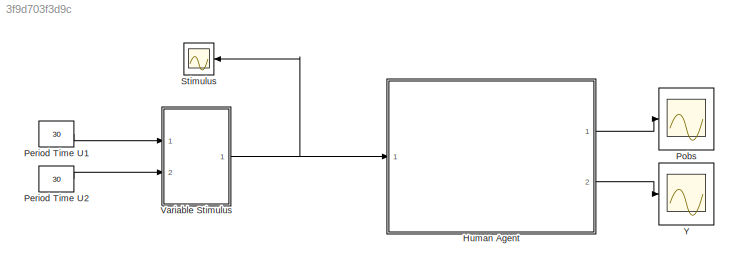
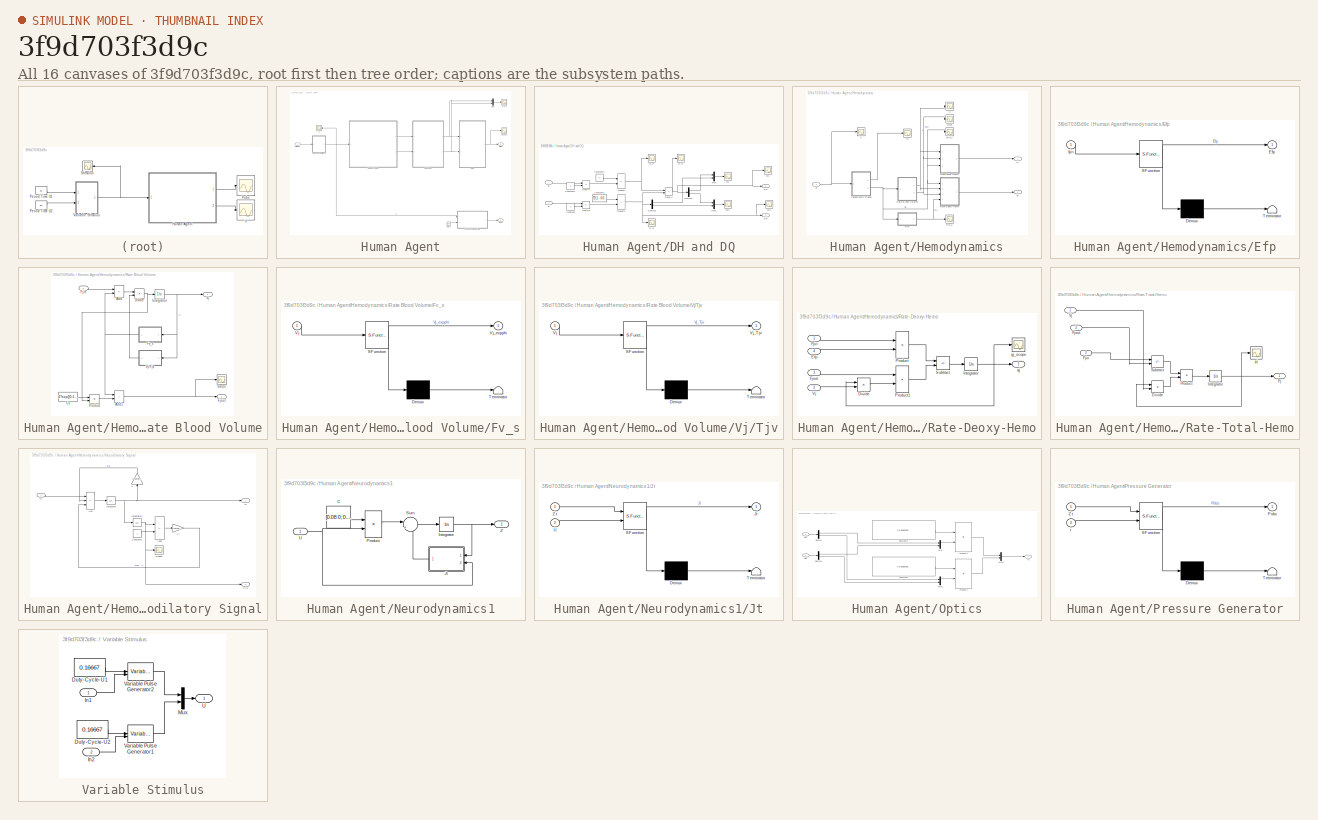
[diagram: thumbnail index - all 16 canvases of the model, root first then tree order]
MODEL slx_3f9d703f3d9c
KIND model
CONFIG AbsTol = auto
CONFIG EnableMultiTasking = off
CONFIG FixedStep = auto
CONFIG MaxStep = auto
CONFIG MinStep = auto
CONFIG RelTol = 1e-3
CONFIG SampleTimeConstraint = Unconstrained
CONFIG SolverName = ode45
CONFIG StartTime = 0.0
CONFIG StopTime = 60
BLOCK [SubSystem] Human Agent
  Ports = [1, 2]
  RequestExecContextInheritance = off
BLOCK [Clock] Human Agent/Clock
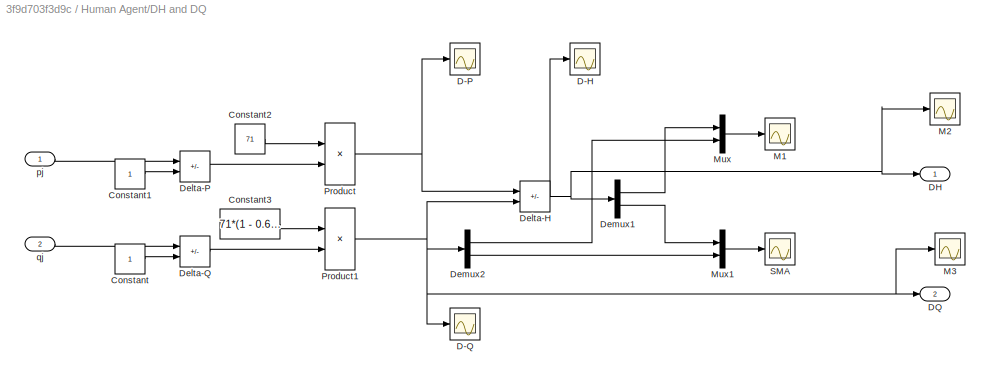
BLOCK [SubSystem] Human Agent/DH and DQ
  Ports = [2, 2]
  RequestExecContextInheritance = off
BLOCK [Constant] Human Agent/DH and DQ/Constant
BLOCK [Constant] Human Agent/DH and DQ/Constant1
BLOCK [Constant] Human Agent/DH and DQ/Constant2
  Value = 71
BLOCK [Constant] Human Agent/DH and DQ/Constant3
  Value = 71*(1 - 0.65)
BLOCK [Scope] Human Agent/DH and DQ/D-H
  Floating = off
  NumInputPorts = 1
  Ports = [1]
  ScopeSpecificationString = Simulink.scopes.TimeScopeBlockCfg('CurrentConfiguration', extmgr.ConfigurationSet(extmgr.Configuration('Core','General UI',true),extmgr.Configuration('Core','Source UI',true),extmgr.Configuration('Sources','WiredSimulink',true,'DataLoggingVariableName','ScopeData7'),extmgr.Configuration('Visuals','Time Domain',true,'SerializedDisplays',{struct('MinYLimReal','-2.91276','MaxYLimReal','17.16126','YLa...<+1449ch>
BLOCK [Scope] Human Agent/DH and DQ/D-P
  Floating = off
  NumInputPorts = 1
  Ports = [1]
  ScopeSpecificationString = Simulink.scopes.TimeScopeBlockCfg('CurrentConfiguration', extmgr.ConfigurationSet(extmgr.Configuration('Core','General UI',true),extmgr.Configuration('Core','Source UI',true),extmgr.Configuration('Sources','WiredSimulink',true,'DataLoggingVariableName','ScopeData5'),extmgr.Configuration('Visuals','Time Domain',true,'SerializedDisplays',{struct('MinYLimReal','-2.54989','MaxYLimReal','15.75385','YLa...<+1449ch>
BLOCK [Scope] Human Agent/DH and DQ/D-Q
  Floating = off
  NumInputPorts = 1
  Ports = [1]
  ScopeSpecificationString = Simulink.scopes.TimeScopeBlockCfg('CurrentConfiguration', extmgr.ConfigurationSet(extmgr.Configuration('Core','General UI',true),extmgr.Configuration('Core','Source UI',true),extmgr.Configuration('Sources','WiredSimulink',true,'DataLoggingVariableName','ScopeData6'),extmgr.Configuration('Visuals','Time Domain',true,'SerializedDisplays',{struct('MinYLimReal','-1.64461','MaxYLimReal','0.38619','YLab...<+1448ch>
BLOCK [Outport] Human Agent/DH and DQ/DH
BLOCK [Outport] Human Agent/DH and DQ/DQ
  Port = 2
BLOCK [Sum] Human Agent/DH and DQ/Delta-H
  IconShape = rectangular
  Inputs = +-
  Ports = [2, 1]
BLOCK [Sum] Human Agent/DH and DQ/Delta-P
  IconShape = rectangular
  Inputs = +-
  Ports = [2, 1]
BLOCK [Sum] Human Agent/DH and DQ/Delta-Q
  IconShape = rectangular
  Inputs = +-
  Ports = [2, 1]
BLOCK [Demux] Human Agent/DH and DQ/Demux1
  Outputs = 2
  Ports = [1, 2]
BLOCK [Demux] Human Agent/DH and DQ/Demux2
  Outputs = 2
  Ports = [1, 2]
BLOCK [Scope] Human Agent/DH and DQ/M1
  Floating = off
  NumInputPorts = 1
  Ports = [1]
  ScopeSpecificationString = Simulink.scopes.TimeScopeBlockCfg('CurrentConfiguration', extmgr.ConfigurationSet(extmgr.Configuration('Core','General UI',true),extmgr.Configuration('Core','Source UI',true),extmgr.Configuration('Sources','WiredSimulink',true,'DataLoggingVariableName','ScopeData8'),extmgr.Configuration('Visuals','Time Domain',true,'SerializedDisplays',{struct('MinYLimReal','-2.53548','MaxYLimReal','8.40407','YLab...<+1757ch>
BLOCK [Scope] Human Agent/DH and DQ/M2
  Floating = off
  NumInputPorts = 1
  Ports = [1]
  ScopeSpecificationString = Simulink.scopes.TimeScopeBlockCfg('CurrentConfiguration', extmgr.ConfigurationSet(extmgr.Configuration('Core','General UI',true),extmgr.Configuration('Core','Source UI',true),extmgr.Configuration('Sources','WiredSimulink',true,'DataLoggingVariableName','ScopeData1'),extmgr.Configuration('Visuals','Time Domain',true,'SerializedDisplays',{struct('MinYLimReal','-2.88306','MaxYLimReal','17.00039','YLa...<+1764ch>
BLOCK [Scope] Human Agent/DH and DQ/M3
  Floating = off
  NumInputPorts = 1
  Ports = [1]
  ScopeSpecificationString = Simulink.scopes.TimeScopeBlockCfg('CurrentConfiguration', extmgr.ConfigurationSet(extmgr.Configuration('Core','General UI',true),extmgr.Configuration('Core','Source UI',true),extmgr.Configuration('Sources','WiredSimulink',true,'DataLoggingVariableName','ScopeData2'),extmgr.Configuration('Visuals','Time Domain',true,'SerializedDisplays',{struct('MinYLimReal','-1.64461','MaxYLimReal','0.38619','YLab...<+1762ch>
BLOCK [Mux] Human Agent/DH and DQ/Mux
  DisplayOption = bar
  Inputs = 2
  Ports = [2, 1]
BLOCK [Mux] Human Agent/DH and DQ/Mux1
  DisplayOption = bar
  Inputs = 2
  Ports = [2, 1]
BLOCK [Product] Human Agent/DH and DQ/Product
  Ports = [2, 1]
BLOCK [Product] Human Agent/DH and DQ/Product1
  Ports = [2, 1]
BLOCK [Scope] Human Agent/DH and DQ/SMA
  Floating = off
  NumInputPorts = 1
  Ports = [1]
  ScopeSpecificationString = Simulink.scopes.TimeScopeBlockCfg('CurrentConfiguration', extmgr.ConfigurationSet(extmgr.Configuration('Core','General UI',true),extmgr.Configuration('Core','Source UI',true),extmgr.Configuration('Sources','WiredSimulink',true,'DataLoggingVariableName','ScopeData9'),extmgr.Configuration('Visuals','Time Domain',true,'SerializedDisplays',{struct('MinYLimReal','-3.30393','MaxYLimReal','17.04715','YLa...<+1761ch>
BLOCK [Inport] Human Agent/DH and DQ/pj
BLOCK [Inport] Human Agent/DH and DQ/qj
  Port = 2
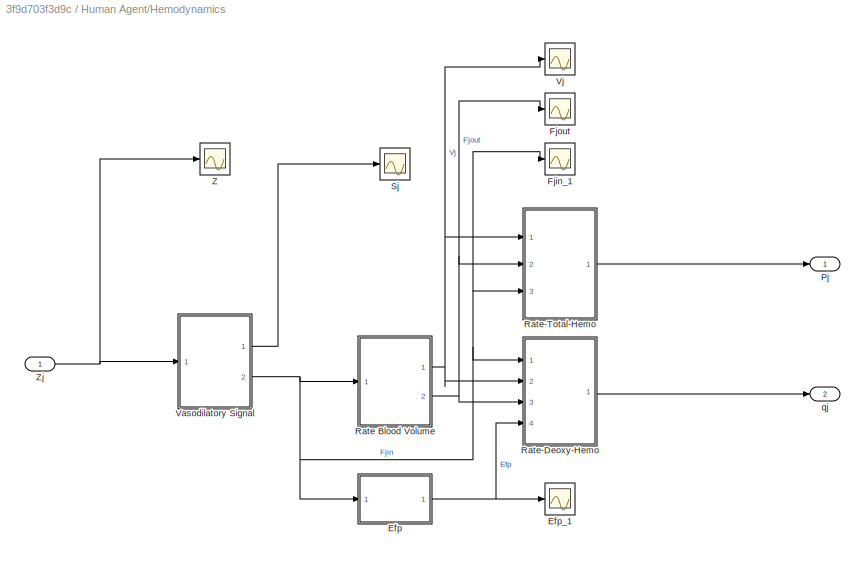
BLOCK [SubSystem] Human Agent/Hemodynamics
  Ports = [1, 2]
  RequestExecContextInheritance = off
BLOCK [SubSystem] Human Agent/Hemodynamics/Efp
  ErrorFcn = Stateflow.Translate.translate
  PermitHierarchicalResolution = ExplicitOnly
  Ports = [1, 1]
  RequestExecContextInheritance = off
  SFBlockType = MATLAB Function
  TreatAsAtomicUnit = on
BLOCK [Demux] Human Agent/Hemodynamics/Efp/ Demux 
  Outputs = 1
  Ports = [1, 1]
BLOCK [S-Function] Human Agent/Hemodynamics/Efp/ SFunction 
  EnableBusSupport = on
  FunctionName = sf_sfun
  PortCounts = [1 2]
  Ports = [1, 2]
  SFcnIsStateOwnerBlock = off
  SFunctionDeploymentMode = off
  Tag = Stateflow S-Function 1
BLOCK [Terminator] Human Agent/Hemodynamics/Efp/ Terminator 
BLOCK [Outport] Human Agent/Hemodynamics/Efp/Efp
BLOCK [Inport] Human Agent/Hemodynamics/Efp/fjin
BLOCK [Scope] Human Agent/Hemodynamics/Efp_1
  Floating = off
  NumInputPorts = 1
  Ports = [1]
  ScopeSpecificationString = Simulink.scopes.TimeScopeBlockCfg('CurrentConfiguration', extmgr.ConfigurationSet(extmgr.Configuration('Core','General UI',true),extmgr.Configuration('Core','Source UI',true),extmgr.Configuration('Sources','WiredSimulink',true,'DataLoggingVariableName','ScopeData7'),extmgr.Configuration('Visuals','Time Domain',true,'SerializedDisplays',{struct('MinYLimReal','0.87922','MaxYLimReal','1.03497','YLabe...<+1400ch>
BLOCK [Scope] Human Agent/Hemodynamics/Fjin_1
  Floating = off
  NumInputPorts = 1
  Ports = [1]
  ScopeSpecificationString = Simulink.scopes.TimeScopeBlockCfg('CurrentConfiguration', extmgr.ConfigurationSet(extmgr.Configuration('Core','General UI',true),extmgr.Configuration('Core','Source UI',true),extmgr.Configuration('Sources','WiredSimulink',true,'DataLoggingVariableName','ScopeData6'),extmgr.Configuration('Visuals','Time Domain',true,'SerializedDisplays',{struct('MinYLimReal','0.95597','MaxYLimReal','1.16405','YLabe...<+1403ch>
BLOCK [Scope] Human Agent/Hemodynamics/Fjout
  Floating = off
  NumInputPorts = 1
  Ports = [1]
  ScopeSpecificationString = Simulink.scopes.TimeScopeBlockCfg('CurrentConfiguration', extmgr.ConfigurationSet(extmgr.Configuration('Core','General UI',true),extmgr.Configuration('Core','Source UI',true),extmgr.Configuration('Sources','WiredSimulink',true,'DataLoggingVariableName','ScopeData5'),extmgr.Configuration('Visuals','Time Domain',true,'SerializedDisplays',{struct('MinYLimReal','0.96309','MaxYLimReal','1.1501','YLabel...<+1400ch>
BLOCK [Outport] Human Agent/Hemodynamics/Pj
BLOCK [SubSystem] Human Agent/Hemodynamics/Rate Blood Volume
  Ports = [1, 2]
  RequestExecContextInheritance = off
BLOCK [Sum] Human Agent/Hemodynamics/Rate Blood Volume/Add
  IconShape = rectangular
  Inputs = +-
  Ports = [2, 1]
BLOCK [Sum] Human Agent/Hemodynamics/Rate Blood Volume/Add1
  IconShape = rectangular
  Ports = [2, 1]
BLOCK [Product] Human Agent/Hemodynamics/Rate Blood Volume/Divide
  Inputs = */
  Ports = [2, 1]
BLOCK [Inport] Human Agent/Hemodynamics/Rate Blood Volume/Fjin
BLOCK [Outport] Human Agent/Hemodynamics/Rate Blood Volume/Fjout
  Port = 2
BLOCK [SubSystem] Human Agent/Hemodynamics/Rate Blood Volume/Fv_s
  ErrorFcn = Stateflow.Translate.translate
  PermitHierarchicalResolution = ExplicitOnly
  Ports = [1, 1]
  RequestExecContextInheritance = off
  SFBlockType = MATLAB Function
  TreatAsAtomicUnit = on
BLOCK [Demux] Human Agent/Hemodynamics/Rate Blood Volume/Fv_s/ Demux 
  Outputs = 1
  Ports = [1, 1]
BLOCK [S-Function] Human Agent/Hemodynamics/Rate Blood Volume/Fv_s/ SFunction 
  EnableBusSupport = on
  FunctionName = sf_sfun
  PortCounts = [1 2]
  Ports = [1, 2]
  SFcnIsStateOwnerBlock = off
  SFunctionDeploymentMode = off
  Tag = Stateflow S-Function 10
BLOCK [Terminator] Human Agent/Hemodynamics/Rate Blood Volume/Fv_s/ Terminator 
BLOCK [Inport] Human Agent/Hemodynamics/Rate Blood Volume/Fv_s/Vj
BLOCK [Outport] Human Agent/Hemodynamics/Rate Blood Volume/Fv_s/Vj_expphi
BLOCK [Integrator] Human Agent/Hemodynamics/Rate Blood Volume/Integrator
  InitialCondition = exp([0;0])
  Ports = [1, 1]
BLOCK [Product] Human Agent/Hemodynamics/Rate Blood Volume/Product
  Ports = [2, 1]
BLOCK [Scope] Human Agent/Hemodynamics/Rate Blood Volume/Scope
  Floating = off
  NumInputPorts = 1
  Ports = [1]
  ScopeSpecificationString = Simulink.scopes.TimeScopeBlockCfg('CurrentConfiguration', extmgr.ConfigurationSet(extmgr.Configuration('Core','General UI',true),extmgr.Configuration('Core','Source UI',true),extmgr.Configuration('Sources','WiredSimulink',true,'DataLoggingVariableName','ScopeData2'),extmgr.Configuration('Visuals','Time Domain',true,'SerializedDisplays',{struct('MinYLimReal','0.96417','MaxYLimReal','1.14994','YLabe...<+1372ch>
BLOCK [Constant] Human Agent/Hemodynamics/Rate Blood Volume/Tjv
  Value = 2*exp([0;1])
BLOCK [Outport] Human Agent/Hemodynamics/Rate Blood Volume/Vj
BLOCK [SubSystem] Human Agent/Hemodynamics/Rate Blood Volume/Vj//Tjv
  ErrorFcn = Stateflow.Translate.translate
  PermitHierarchicalResolution = ExplicitOnly
  Ports = [1, 1]
  RequestExecContextInheritance = off
  SFBlockType = MATLAB Function
  TreatAsAtomicUnit = on
BLOCK [Demux] Human Agent/Hemodynamics/Rate Blood Volume/Vj//Tjv/ Demux 
  Outputs = 1
  Ports = [1, 1]
BLOCK [S-Function] Human Agent/Hemodynamics/Rate Blood Volume/Vj//Tjv/ SFunction 
  EnableBusSupport = on
  FunctionName = sf_sfun
  PortCounts = [1 2]
  Ports = [1, 2]
  SFcnIsStateOwnerBlock = off
  SFunctionDeploymentMode = off
  Tag = Stateflow S-Function 11
BLOCK [Terminator] Human Agent/Hemodynamics/Rate Blood Volume/Vj//Tjv/ Terminator 
BLOCK [Inport] Human Agent/Hemodynamics/Rate Blood Volume/Vj//Tjv/Vj
BLOCK [Outport] Human Agent/Hemodynamics/Rate Blood Volume/Vj//Tjv/Vj_Tjv
BLOCK [SubSystem] Human Agent/Hemodynamics/Rate-Deoxy-Hemo
  Ports = [4, 1]
  RequestExecContextInheritance = off
BLOCK [Product] Human Agent/Hemodynamics/Rate-Deoxy-Hemo/Divide
  Inputs = */
  Ports = [2, 1]
BLOCK [Inport] Human Agent/Hemodynamics/Rate-Deoxy-Hemo/Efp
  Port = 4
BLOCK [Inport] Human Agent/Hemodynamics/Rate-Deoxy-Hemo/Fjin
BLOCK [Inport] Human Agent/Hemodynamics/Rate-Deoxy-Hemo/Fjout
  Port = 3
BLOCK [Integrator] Human Agent/Hemodynamics/Rate-Deoxy-Hemo/Integrator
  InitialCondition = exp([0;0])
  Ports = [1, 1]
BLOCK [Product] Human Agent/Hemodynamics/Rate-Deoxy-Hemo/Product
  Ports = [2, 1]
BLOCK [Product] Human Agent/Hemodynamics/Rate-Deoxy-Hemo/Product1
  Ports = [2, 1]
BLOCK [Sum] Human Agent/Hemodynamics/Rate-Deoxy-Hemo/Subtract
  IconShape = rectangular
  Inputs = +-
  Ports = [2, 1]
BLOCK [Inport] Human Agent/Hemodynamics/Rate-Deoxy-Hemo/Vj
  Port = 2
BLOCK [Outport] Human Agent/Hemodynamics/Rate-Deoxy-Hemo/qj
BLOCK [Scope] Human Agent/Hemodynamics/Rate-Deoxy-Hemo/qj_scope
  Floating = off
  NumInputPorts = 1
  Ports = [1]
  ScopeSpecificationString = Simulink.scopes.TimeScopeBlockCfg('CurrentConfiguration', extmgr.ConfigurationSet(extmgr.Configuration('Core','General UI',true),extmgr.Configuration('Core','Source UI',true),extmgr.Configuration('Sources','WiredSimulink',true,'DataLoggingVariableName','ScopeData1'),extmgr.Configuration('Visuals','Time Domain',true,'SerializedDisplays',{struct('MinYLimReal','0.9335','MaxYLimReal','1.01624','YLabel...<+1411ch>
BLOCK [SubSystem] Human Agent/Hemodynamics/Rate-Total-Hemo
  Ports = [3, 1]
  RequestExecContextInheritance = off
BLOCK [Product] Human Agent/Hemodynamics/Rate-Total-Hemo/Divide
  Inputs = */
  Ports = [2, 1]
BLOCK [Inport] Human Agent/Hemodynamics/Rate-Total-Hemo/Fjin
  Port = 3
BLOCK [Inport] Human Agent/Hemodynamics/Rate-Total-Hemo/Fjout
  Port = 2
BLOCK [Integrator] Human Agent/Hemodynamics/Rate-Total-Hemo/Integrator
  InitialCondition = exp([0;0])
  Ports = [1, 1]
BLOCK [Outport] Human Agent/Hemodynamics/Rate-Total-Hemo/Pj
BLOCK [Product] Human Agent/Hemodynamics/Rate-Total-Hemo/Product
  Ports = [2, 1]
BLOCK [Sum] Human Agent/Hemodynamics/Rate-Total-Hemo/Subtract
  IconShape = rectangular
  Inputs = +-
  Ports = [2, 1]
BLOCK [Inport] Human Agent/Hemodynamics/Rate-Total-Hemo/Vj
BLOCK [Scope] Human Agent/Hemodynamics/Rate-Total-Hemo/pj
  Floating = off
  NumInputPorts = 1
  Ports = [1]
  ScopeSpecificationString = Simulink.scopes.TimeScopeBlockCfg('CurrentConfiguration', extmgr.ConfigurationSet(extmgr.Configuration('Core','General UI',true),extmgr.Configuration('Core','Source UI',true),extmgr.Configuration('Sources','WiredSimulink',true,'DataLoggingVariableName','ScopeData2'),extmgr.Configuration('Visuals','Time Domain',true,'SerializedDisplays',{struct('MinYLimReal','0.96327','MaxYLimReal','1.22259','YLabe...<+1415ch>
BLOCK [Scope] Human Agent/Hemodynamics/Sj
  Floating = off
  NumInputPorts = 1
  Ports = [1]
  ScopeSpecificationString = Simulink.scopes.TimeScopeBlockCfg('CurrentConfiguration', extmgr.ConfigurationSet(extmgr.Configuration('Core','General UI',true),extmgr.Configuration('Core','Source UI',true),extmgr.Configuration('Sources','WiredSimulink',true,'DataLoggingVariableName','ScopeData1'),extmgr.Configuration('Visuals','Time Domain',true,'SerializedDisplays',{struct('MinYLimReal','-0.0545','MaxYLimReal','0.05017','YLabe...<+1435ch>
BLOCK [SubSystem] Human Agent/Hemodynamics/Vasodilatory Signal
  Ports = [1, 2]
  RequestExecContextInheritance = off
BLOCK [Sum] Human Agent/Hemodynamics/Vasodilatory Signal/Add
  IconShape = rectangular
  Inputs = +--
  Ports = [3, 1]
BLOCK [Sum] Human Agent/Hemodynamics/Vasodilatory Signal/Add1
  IconShape = rectangular
  Inputs = +-
  Ports = [2, 1]
BLOCK [Constant] Human Agent/Hemodynamics/Vasodilatory Signal/Constant1
BLOCK [Outport] Human Agent/Hemodynamics/Vasodilatory Signal/Fjin
  Port = 2
BLOCK [Integrator] Human Agent/Hemodynamics/Vasodilatory Signal/Integrator
  Ports = [1, 1]
BLOCK [Integrator] Human Agent/Hemodynamics/Vasodilatory Signal/Integrator1
  InitialCondition = exp([0;0])
  Ports = [1, 1]
BLOCK [Gain] Human Agent/Hemodynamics/Vasodilatory Signal/K
  Gain = 0.64*exp([0;0.05])
  NameLocation = right
BLOCK [Scope] Human Agent/Hemodynamics/Vasodilatory Signal/Scope1
  Floating = off
  NumInputPorts = 1
  Ports = [1]
  ScopeSpecificationString = Simulink.scopes.TimeScopeBlockCfg('CurrentConfiguration', extmgr.ConfigurationSet(extmgr.Configuration('Core','General UI',true),extmgr.Configuration('Core','Source UI',true),extmgr.Configuration('Sources','WiredSimulink',true,'DataLoggingVariableName','ScopeData1'),extmgr.Configuration('Visuals','Time Domain',true,'SerializedDisplays',{struct('MinYLimReal','-0.02898','MaxYLimReal','0.08445','YLab...<+1370ch>
BLOCK [Outport] Human Agent/Hemodynamics/Vasodilatory Signal/Sj
BLOCK [Gain] Human Agent/Hemodynamics/Vasodilatory Signal/Yj
  Gain = 0.32*exp([0;0.05])
BLOCK [Inport] Human Agent/Hemodynamics/Vasodilatory Signal/Zj
BLOCK [Scope] Human Agent/Hemodynamics/Vj
  Floating = off
  NumInputPorts = 1
  Ports = [1]
  ScopeSpecificationString = Simulink.scopes.TimeScopeBlockCfg('CurrentConfiguration', extmgr.ConfigurationSet(extmgr.Configuration('Core','General UI',true),extmgr.Configuration('Core','Source UI',true),extmgr.Configuration('Sources','WiredSimulink',true,'DataLoggingVariableName','ScopeData4'),extmgr.Configuration('Visuals','Time Domain',true,'SerializedDisplays',{struct('MinYLimReal','0.98899','MaxYLimReal','1.04469','YLabe...<+1398ch>
BLOCK [Scope] Human Agent/Hemodynamics/Z
  Floating = off
  NumInputPorts = 1
  Ports = [1]
  ScopeSpecificationString = Simulink.scopes.TimeScopeBlockCfg('CurrentConfiguration', extmgr.ConfigurationSet(extmgr.Configuration('Core','General UI',true),extmgr.Configuration('Core','Source UI',true),extmgr.Configuration('Sources','WiredSimulink',true),extmgr.Configuration('Visuals','Time Domain',true,'SerializedDisplays',{struct('MinYLimReal','-0.01031','MaxYLimReal','0.05684','YLabelReal','','MinYLimMag','0.00000','MaxY...<+1359ch>
BLOCK [Inport] Human Agent/Hemodynamics/Zj
BLOCK [Outport] Human Agent/Hemodynamics/qj
  Port = 2
BLOCK [Mux] Human Agent/Mux
  DisplayOption = bar
  Inputs = 2
  Ports = [2, 1]
BLOCK [SubSystem] Human Agent/Neurodynamics1
  Ports = [1, 1]
  RequestExecContextInheritance = off
BLOCK [Constant] Human Agent/Neurodynamics1/C
  NameLocation = top
  Value = [0.08 0; 0.06 0 ]
BLOCK [Integrator] Human Agent/Neurodynamics1/Integrator
  Ports = [1, 1]
BLOCK [SubSystem] Human Agent/Neurodynamics1/Jt
  ErrorFcn = Stateflow.Translate.translate
  PermitHierarchicalResolution = ExplicitOnly
  Ports = [2, 1]
  RequestExecContextInheritance = off
  SFBlockType = MATLAB Function
  TreatAsAtomicUnit = on
BLOCK [Demux] Human Agent/Neurodynamics1/Jt/ Demux 
  Outputs = 1
  Ports = [1, 1]
BLOCK [S-Function] Human Agent/Neurodynamics1/Jt/ SFunction 
  EnableBusSupport = on
  FunctionName = sf_sfun
  PortCounts = [2 2]
  Ports = [2, 2]
  SFcnIsStateOwnerBlock = off
  SFunctionDeploymentMode = off
  Tag = Stateflow S-Function 12
BLOCK [Terminator] Human Agent/Neurodynamics1/Jt/ Terminator 
BLOCK [Outport] Human Agent/Neurodynamics1/Jt/Jt
BLOCK [Inport] Human Agent/Neurodynamics1/Jt/U
  Port = 2
BLOCK [Inport] Human Agent/Neurodynamics1/Jt/Zt
BLOCK [Product] Human Agent/Neurodynamics1/Product
  Multiplication = Matrix(*)
  Ports = [2, 1]
BLOCK [Sum] Human Agent/Neurodynamics1/Sum
  Inputs = |++
  Ports = [2, 1]
BLOCK [Inport] Human Agent/Neurodynamics1/U
BLOCK [Outport] Human Agent/Neurodynamics1/Z
BLOCK [SubSystem] Human Agent/Optics
  Ports = [2, 1]
  RequestExecContextInheritance = off
BLOCK [Constant] Human Agent/Optics/Constant1
  Value = [(0.00007358252*7.5) (0.0001104714*6.5);(0.0001159306*7.5) (0.00007858993*6.5)]
BLOCK [Constant] Human Agent/Optics/Constant4
  Value = [(0.00007358252*7.5) (0.0001104714*6.5);(0.0001159306*7.5) (0.00007858993*6.5)]
BLOCK [Inport] Human Agent/Optics/DH
BLOCK [Inport] Human Agent/Optics/DQ
  Port = 2
BLOCK [Demux] Human Agent/Optics/Demux
  Outputs = 2
  Ports = [1, 2]
BLOCK [Demux] Human Agent/Optics/Demux1
  Outputs = 2
  Ports = [1, 2]
BLOCK [Mux] Human Agent/Optics/Mux
  DisplayOption = bar
  Inputs = 2
  Ports = [2, 1]
BLOCK [Mux] Human Agent/Optics/Mux1
  DisplayOption = bar
  Inputs = 2
  Ports = [2, 1]
BLOCK [Mux] Human Agent/Optics/Mux2
  DisplayOption = bar
  Inputs = 2
  Ports = [2, 1]
BLOCK [Product] Human Agent/Optics/Product1
  Multiplication = Matrix(*)
  Ports = [2, 1]
BLOCK [Product] Human Agent/Optics/Product2
  Multiplication = Matrix(*)
  Ports = [2, 1]
BLOCK [Outport] Human Agent/Optics/Y1
BLOCK [Outport] Human Agent/Pobs
BLOCK [SubSystem] Human Agent/Pressure Generator
  ErrorFcn = Stateflow.Translate.translate
  PermitHierarchicalResolution = ExplicitOnly
  Ports = [2, 1]
  RequestExecContextInheritance = off
  SFBlockType = MATLAB Function
  TreatAsAtomicUnit = on
BLOCK [Demux] Human Agent/Pressure Generator/ Demux 
  Outputs = 1
  Ports = [1, 1]
BLOCK [S-Function] Human Agent/Pressure Generator/ SFunction 
  EnableBusSupport = on
  FunctionName = sf_sfun
  PortCounts = [2 2]
  Ports = [2, 2]
  SFcnIsStateOwnerBlock = off
  SFunctionDeploymentMode = off
  Tag = Stateflow S-Function 2
BLOCK [Terminator] Human Agent/Pressure Generator/ Terminator 
BLOCK [Outport] Human Agent/Pressure Generator/Pobs
BLOCK [Inport] Human Agent/Pressure Generator/Zt
BLOCK [Inport] Human Agent/Pressure Generator/t
  Port = 2
BLOCK [Scope] Human Agent/Scope
  Floating = off
  NumInputPorts = 1
  Ports = [1]
  ScopeSpecificationString = Simulink.scopes.TimeScopeBlockCfg('CurrentConfiguration', extmgr.ConfigurationSet(extmgr.Configuration('Core','General UI',true),extmgr.Configuration('Core','Source UI',true),extmgr.Configuration('Sources','WiredSimulink',true,'DataLoggingVariableName','ScopeData3'),extmgr.Configuration('Visuals','Time Domain',true,'SerializedDisplays',{struct('MinYLimReal','-3.49822','MaxYLimReal','17.06874','YLa...<+1454ch>
BLOCK [Scope] Human Agent/Scope1
  Floating = off
  NumInputPorts = 1
  Ports = [1]
  ScopeSpecificationString = Simulink.scopes.TimeScopeBlockCfg('CurrentConfiguration', extmgr.ConfigurationSet(extmgr.Configuration('Core','General UI',true),extmgr.Configuration('Core','Source UI',true),extmgr.Configuration('Sources','WiredSimulink',true,'DataLoggingVariableName','ScopeData4'),extmgr.Configuration('Visuals','Time Domain',true,'SerializedDisplays',{struct('MinYLimReal','-0.00232','MaxYLimReal','0.01406','YLab...<+1431ch>
BLOCK [Inport] Human Agent/Stimulus
BLOCK [Scope] Human Agent/Z
  Floating = off
  NumInputPorts = 1
  Ports = [1]
  ScopeSpecificationString = Simulink.scopes.TimeScopeBlockCfg('CurrentConfiguration', extmgr.ConfigurationSet(extmgr.Configuration('Core','General UI',true,'FigureColor',[0 0 0]),extmgr.Configuration('Core','Source UI',true),extmgr.Configuration('Sources','WiredSimulink',true,'DataLoggingVariableName','ScopeData1'),extmgr.Configuration('Visuals','Time Domain',true,'SerializedDisplays',{struct('MinYLimReal','-0.01059','MaxYLi...<+1646ch>
BLOCK [Outport] Human Agent/fNIRS
  Port = 2
BLOCK [Constant] Period Time U1
  Value = 30
BLOCK [Constant] Period Time U2
  Value = 30
BLOCK [Scope] Pobs
  Floating = off
  NumInputPorts = 1
  Ports = [1]
  ScopeSpecificationString = Simulink.scopes.TimeScopeBlockCfg('CurrentConfiguration', extmgr.ConfigurationSet(extmgr.Configuration('Core','General UI',true,'FigureColor',[1 1 1]),extmgr.Configuration('Core','Source UI',true),extmgr.Configuration('Sources','WiredSimulink',true,'DataLoggingVariableName','ScopeData1'),extmgr.Configuration('Visuals','Time Domain',true,'SerializedDisplays',{struct('MinYLimReal','-0.00512','MaxYLi...<+2108ch>
BLOCK [Scope] Stimulus
  Floating = off
  NumInputPorts = 1
  Ports = [1]
  ScopeSpecificationString = Simulink.scopes.TimeScopeBlockCfg('CurrentConfiguration', extmgr.ConfigurationSet(extmgr.Configuration('Core','General UI',true,'FigureColor',[0 0 0]),extmgr.Configuration('Core','Source UI',true),extmgr.Configuration('Sources','WiredSimulink',true,'DataLoggingVariableName','ScopeData1'),extmgr.Configuration('Visuals','Time Domain',true,'SerializedDisplays',{struct('MinYLimReal','-0.125','MaxYLimR...<+1665ch>
BLOCK [SubSystem] Variable Stimulus
  Ports = [2, 1]
  RequestExecContextInheritance = off
BLOCK [Constant] Variable Stimulus/Duty-Cycle-U1
  OutMax = [0.8]
  OutMin = [0]
  Value = 0.16667
BLOCK [Constant] Variable Stimulus/Duty-Cycle-U2
  OutMax = [0.8]
  OutMin = [0]
  Value = 0.16667
BLOCK [Inport] Variable Stimulus/In1
BLOCK [Inport] Variable Stimulus/In2
  Port = 2
BLOCK [Mux] Variable Stimulus/Mux
  DisplayOption = bar
  Inputs = 2
  Ports = [2, 1]
BLOCK [Outport] Variable Stimulus/U
BLOCK [VariablePulseGenerator] Variable Stimulus/Variable Pulse Generator1
  RunAtFixedTimeIntervals = on
  SampleTime = 1/10.4
BLOCK [VariablePulseGenerator] Variable Stimulus/Variable Pulse Generator2
  RunAtFixedTimeIntervals = on
  SampleTime = 1/10.4
BLOCK [Scope] Y
  Floating = off
  NumInputPorts = 1
  Ports = [1]
  ScopeSpecificationString = Simulink.scopes.TimeScopeBlockCfg('CurrentConfiguration', extmgr.ConfigurationSet(extmgr.Configuration('Core','General UI',true,'FigureColor',[1 1 1]),extmgr.Configuration('Core','Source UI',true),extmgr.Configuration('Sources','WiredSimulink',true,'DataLoggingVariableName','ScopeData2'),extmgr.Configuration('Visuals','Time Domain',true,'SerializedDisplays',{struct('MinYLimReal','-0.00232','MaxYLi...<+2160ch>
LINE Human Agent/Clock:1 -> Human Agent/Pressure Generator:2
LINE Human Agent/DH and DQ/Constant1:1 -> Human Agent/DH and DQ/Delta-P:2
LINE Human Agent/DH and DQ/Constant2:1 -> Human Agent/DH and DQ/Product:1
LINE Human Agent/DH and DQ/Constant3:1 -> Human Agent/DH and DQ/Product1:1
LINE Human Agent/DH and DQ/Constant:1 -> Human Agent/DH and DQ/Delta-Q:2
NET Human Agent/DH and DQ/Delta-H:1 -> Human Agent/DH and DQ/D-H:1, Human Agent/DH and DQ/DH:1, Human Agent/DH and DQ/Demux1:1, Human Agent/DH and DQ/M2:1
LINE Human Agent/DH and DQ/Delta-P:1 -> Human Agent/DH and DQ/Product:2
LINE Human Agent/DH and DQ/Delta-Q:1 -> Human Agent/DH and DQ/Product1:2
LINE Human Agent/DH and DQ/Demux1:1 -> Human Agent/DH and DQ/Mux:1
LINE Human Agent/DH and DQ/Demux1:2 -> Human Agent/DH and DQ/Mux1:1
LINE Human Agent/DH and DQ/Demux2:1 -> Human Agent/DH and DQ/Mux:2
LINE Human Agent/DH and DQ/Demux2:2 -> Human Agent/DH and DQ/Mux1:2
LINE Human Agent/DH and DQ/Mux1:1 -> Human Agent/DH and DQ/SMA:1
LINE Human Agent/DH and DQ/Mux:1 -> Human Agent/DH and DQ/M1:1
NET Human Agent/DH and DQ/Product1:1 -> Human Agent/DH and DQ/D-Q:1, Human Agent/DH and DQ/DQ:1, Human Agent/DH and DQ/Delta-H:2, Human Agent/DH and DQ/Demux2:1, Human Agent/DH and DQ/M3:1
NET Human Agent/DH and DQ/Product:1 -> Human Agent/DH and DQ/D-P:1, Human Agent/DH and DQ/Delta-H:1
LINE Human Agent/DH and DQ/pj:1 -> Human Agent/DH and DQ/Delta-P:1
LINE Human Agent/DH and DQ/qj:1 -> Human Agent/DH and DQ/Delta-Q:1
NET Human Agent/DH and DQ:1 -> Human Agent/Mux:1, Human Agent/Optics:1
NET Human Agent/DH and DQ:2 -> Human Agent/Mux:2, Human Agent/Optics:2
NET Human Agent/Hemodynamics/Efp:1 -> Human Agent/Hemodynamics/Efp_1:1, Human Agent/Hemodynamics/Rate-Deoxy-Hemo:4
NET Human Agent/Hemodynamics/Rate Blood Volume/Add1:1 -> Human Agent/Hemodynamics/Rate Blood Volume/Fjout:1, Human Agent/Hemodynamics/Rate Blood Volume/Scope:1
LINE Human Agent/Hemodynamics/Rate Blood Volume/Add:1 -> Human Agent/Hemodynamics/Rate Blood Volume/Divide:1
NET Human Agent/Hemodynamics/Rate Blood Volume/Divide:1 -> Human Agent/Hemodynamics/Rate Blood Volume/Integrator:1, Human Agent/Hemodynamics/Rate Blood Volume/Product:2
LINE Human Agent/Hemodynamics/Rate Blood Volume/Fjin:1 -> Human Agent/Hemodynamics/Rate Blood Volume/Add:1
NET Human Agent/Hemodynamics/Rate Blood Volume/Fv_s:1 -> Human Agent/Hemodynamics/Rate Blood Volume/Add1:1, Human Agent/Hemodynamics/Rate Blood Volume/Add:2
NET Human Agent/Hemodynamics/Rate Blood Volume/Integrator:1 -> Human Agent/Hemodynamics/Rate Blood Volume/Fv_s:1, Human Agent/Hemodynamics/Rate Blood Volume/Vj//Tjv:1, Human Agent/Hemodynamics/Rate Blood Volume/Vj:1
LINE Human Agent/Hemodynamics/Rate Blood Volume/Product:1 -> Human Agent/Hemodynamics/Rate Blood Volume/Add1:2
LINE Human Agent/Hemodynamics/Rate Blood Volume/Tjv:1 -> Human Agent/Hemodynamics/Rate Blood Volume/Product:1
LINE Human Agent/Hemodynamics/Rate Blood Volume/Vj//Tjv:1 -> Human Agent/Hemodynamics/Rate Blood Volume/Divide:2
NET Human Agent/Hemodynamics/Rate Blood Volume:1 -> Human Agent/Hemodynamics/Rate-Deoxy-Hemo:2, Human Agent/Hemodynamics/Rate-Total-Hemo:1, Human Agent/Hemodynamics/Vj:1
NET Human Agent/Hemodynamics/Rate Blood Volume:2 -> Human Agent/Hemodynamics/Fjout:1, Human Agent/Hemodynamics/Rate-Deoxy-Hemo:3, Human Agent/Hemodynamics/Rate-Total-Hemo:2
LINE Human Agent/Hemodynamics/Rate-Deoxy-Hemo/Divide:1 -> Human Agent/Hemodynamics/Rate-Deoxy-Hemo/Product1:2
LINE Human Agent/Hemodynamics/Rate-Deoxy-Hemo/Efp:1 -> Human Agent/Hemodynamics/Rate-Deoxy-Hemo/Product:2
LINE Human Agent/Hemodynamics/Rate-Deoxy-Hemo/Fjin:1 -> Human Agent/Hemodynamics/Rate-Deoxy-Hemo/Product:1
LINE Human Agent/Hemodynamics/Rate-Deoxy-Hemo/Fjout:1 -> Human Agent/Hemodynamics/Rate-Deoxy-Hemo/Product1:1
NET Human Agent/Hemodynamics/Rate-Deoxy-Hemo/Integrator:1 -> Human Agent/Hemodynamics/Rate-Deoxy-Hemo/Divide:1, Human Agent/Hemodynamics/Rate-Deoxy-Hemo/qj:1, Human Agent/Hemodynamics/Rate-Deoxy-Hemo/qj_scope:1
LINE Human Agent/Hemodynamics/Rate-Deoxy-Hemo/Product1:1 -> Human Agent/Hemodynamics/Rate-Deoxy-Hemo/Subtract:2
LINE Human Agent/Hemodynamics/Rate-Deoxy-Hemo/Product:1 -> Human Agent/Hemodynamics/Rate-Deoxy-Hemo/Subtract:1
LINE Human Agent/Hemodynamics/Rate-Deoxy-Hemo/Subtract:1 -> Human Agent/Hemodynamics/Rate-Deoxy-Hemo/Integrator:1
LINE Human Agent/Hemodynamics/Rate-Deoxy-Hemo/Vj:1 -> Human Agent/Hemodynamics/Rate-Deoxy-Hemo/Divide:2
LINE Human Agent/Hemodynamics/Rate-Deoxy-Hemo:1 -> Human Agent/Hemodynamics/qj:1
LINE Human Agent/Hemodynamics/Rate-Total-Hemo/Divide:1 -> Human Agent/Hemodynamics/Rate-Total-Hemo/Product:2
LINE Human Agent/Hemodynamics/Rate-Total-Hemo/Fjin:1 -> Human Agent/Hemodynamics/Rate-Total-Hemo/Subtract:1
LINE Human Agent/Hemodynamics/Rate-Total-Hemo/Fjout:1 -> Human Agent/Hemodynamics/Rate-Total-Hemo/Subtract:2
NET Human Agent/Hemodynamics/Rate-Total-Hemo/Integrator:1 -> Human Agent/Hemodynamics/Rate-Total-Hemo/Divide:1, Human Agent/Hemodynamics/Rate-Total-Hemo/Pj:1, Human Agent/Hemodynamics/Rate-Total-Hemo/pj:1
LINE Human Agent/Hemodynamics/Rate-Total-Hemo/Product:1 -> Human Agent/Hemodynamics/Rate-Total-Hemo/Integrator:1
LINE Human Agent/Hemodynamics/Rate-Total-Hemo/Subtract:1 -> Human Agent/Hemodynamics/Rate-Total-Hemo/Product:1
LINE Human Agent/Hemodynamics/Rate-Total-Hemo/Vj:1 -> Human Agent/Hemodynamics/Rate-Total-Hemo/Divide:2
LINE Human Agent/Hemodynamics/Rate-Total-Hemo:1 -> Human Agent/Hemodynamics/Pj:1
LINE Human Agent/Hemodynamics/Vasodilatory Signal/Add1:1 -> Human Agent/Hemodynamics/Vasodilatory Signal/Yj:1
LINE Human Agent/Hemodynamics/Vasodilatory Signal/Add:1 -> Human Agent/Hemodynamics/Vasodilatory Signal/Integrator:1
LINE Human Agent/Hemodynamics/Vasodilatory Signal/Constant1:1 -> Human Agent/Hemodynamics/Vasodilatory Signal/Add1:2
NET Human Agent/Hemodynamics/Vasodilatory Signal/Integrator1:1 -> Human Agent/Hemodynamics/Vasodilatory Signal/Add1:1, Human Agent/Hemodynamics/Vasodilatory Signal/Fjin:1, Human Agent/Hemodynamics/Vasodilatory Signal/Scope1:1
NET Human Agent/Hemodynamics/Vasodilatory Signal/Integrator:1 -> Human Agent/Hemodynamics/Vasodilatory Signal/Integrator1:1, Human Agent/Hemodynamics/Vasodilatory Signal/K:1, Human Agent/Hemodynamics/Vasodilatory Signal/Sj:1
LINE Human Agent/Hemodynamics/Vasodilatory Signal/K:1 -> Human Agent/Hemodynamics/Vasodilatory Signal/Add:2
LINE Human Agent/Hemodynamics/Vasodilatory Signal/Yj:1 -> Human Agent/Hemodynamics/Vasodilatory Signal/Add:3
LINE Human Agent/Hemodynamics/Vasodilatory Signal/Zj:1 -> Human Agent/Hemodynamics/Vasodilatory Signal/Add:1
LINE Human Agent/Hemodynamics/Vasodilatory Signal:1 -> Human Agent/Hemodynamics/Sj:1
NET Human Agent/Hemodynamics/Vasodilatory Signal:2 -> Human Agent/Hemodynamics/Efp:1, Human Agent/Hemodynamics/Fjin_1:1, Human Agent/Hemodynamics/Rate Blood Volume:1, Human Agent/Hemodynamics/Rate-Deoxy-Hemo:1, Human Agent/Hemodynamics/Rate-Total-Hemo:3
NET Human Agent/Hemodynamics/Zj:1 -> Human Agent/Hemodynamics/Vasodilatory Signal:1, Human Agent/Hemodynamics/Z:1
LINE Human Agent/Hemodynamics:1 -> Human Agent/DH and DQ:1
LINE Human Agent/Hemodynamics:2 -> Human Agent/DH and DQ:2
LINE Human Agent/Mux:1 -> Human Agent/Scope:1
LINE Human Agent/Neurodynamics1/C:1 -> Human Agent/Neurodynamics1/Product:1
NET Human Agent/Neurodynamics1/Integrator:1 -> Human Agent/Neurodynamics1/Jt:1, Human Agent/Neurodynamics1/Z:1
LINE Human Agent/Neurodynamics1/Jt:1 -> Human Agent/Neurodynamics1/Sum:2
LINE Human Agent/Neurodynamics1/Product:1 -> Human Agent/Neurodynamics1/Sum:1
LINE Human Agent/Neurodynamics1/Sum:1 -> Human Agent/Neurodynamics1/Integrator:1
NET Human Agent/Neurodynamics1/U:1 -> Human Agent/Neurodynamics1/Jt:2, Human Agent/Neurodynamics1/Product:2
NET Human Agent/Neurodynamics1:1 -> Human Agent/Hemodynamics:1, Human Agent/Pressure Generator:1, Human Agent/Z:1
LINE Human Agent/Optics/Constant1:1 -> Human Agent/Optics/Product1:1
LINE Human Agent/Optics/Constant4:1 -> Human Agent/Optics/Product2:1
LINE Human Agent/Optics/DH:1 -> Human Agent/Optics/Demux:1
LINE Human Agent/Optics/DQ:1 -> Human Agent/Optics/Demux1:1
LINE Human Agent/Optics/Demux1:1 -> Human Agent/Optics/Mux:2
LINE Human Agent/Optics/Demux1:2 -> Human Agent/Optics/Mux1:2
LINE Human Agent/Optics/Demux:1 -> Human Agent/Optics/Mux:1
LINE Human Agent/Optics/Demux:2 -> Human Agent/Optics/Mux1:1
LINE Human Agent/Optics/Mux1:1 -> Human Agent/Optics/Product1:2
LINE Human Agent/Optics/Mux2:1 -> Human Agent/Optics/Y1:1
LINE Human Agent/Optics/Mux:1 -> Human Agent/Optics/Product2:2
LINE Human Agent/Optics/Product1:1 -> Human Agent/Optics/Mux2:2
LINE Human Agent/Optics/Product2:1 -> Human Agent/Optics/Mux2:1
NET Human Agent/Optics:1 -> Human Agent/Scope1:1, Human Agent/fNIRS:1
LINE Human Agent/Pressure Generator:1 -> Human Agent/Pobs:1
LINE Human Agent/Stimulus:1 -> Human Agent/Neurodynamics1:1
LINE Human Agent:1 -> Pobs:1
LINE Human Agent:2 -> Y:1
LINE Period Time U1:1 -> Variable Stimulus:1
LINE Period Time U2:1 -> Variable Stimulus:2
LINE Variable Stimulus/Duty-Cycle-U1:1 -> Variable Stimulus/Variable Pulse Generator2:1
LINE Variable Stimulus/Duty-Cycle-U2:1 -> Variable Stimulus/Variable Pulse Generator1:1
LINE Variable Stimulus/In1:1 -> Variable Stimulus/Variable Pulse Generator2:2
LINE Variable Stimulus/In2:1 -> Variable Stimulus/Variable Pulse Generator1:2
LINE Variable Stimulus/Mux:1 -> Variable Stimulus/U:1
LINE Variable Stimulus/Variable Pulse Generator1:1 -> Variable Stimulus/Mux:2
LINE Variable Stimulus/Variable Pulse Generator2:1 -> Variable Stimulus/Mux:1
NET Variable Stimulus:1 -> Human Agent:1, Stimulus:1
note: NET lines group one-source signal fan-out (src -> all destinations, sorted); 1:1 wires keep LINE
CHART Human Agent/Pressure Generator states=1 transitions=1
  STATE_LABEL 'eML_blk_kernel()'
  STATE_LABEL 'SCRIPT:\nfunction Pobs = fcn(Zt, t)\n    R=28.2; %Resistor [Ohms];\n    C=1.7; %Capacitor [Faradays];\n    V= Zt(1); %Voltage or system reference;\n    Vc = V * (1 - exp(-t/(R*C))); % Voltage at the capacitor  \n    \nPobs = Vc;\n'
CHART Human Agent/Hemodynamics/Rate Blood Volume/Fv_s states=1 transitions=1
  STATE_LABEL 'eML_blk_kernel()'
  STATE_LABEL 'SCRIPT:\nfunction Vj_expphi = fcn(Vj)\nphi = 0.32;\nVj_expphi = Vj.^(1/phi);\n'
CHART Human Agent/Hemodynamics/Rate Blood Volume/Vj//Tjv states=1 transitions=1
  STATE_LABEL 'eML_blk_kernel()'
  STATE_LABEL 'SCRIPT:\nfunction Vj_Tjv = fcn(Vj)\n    Tjv = 2*exp([0;1]);\n    Tj = 2*exp([0;0.05]);\nVj_Tjv =(Tj.*Tjv.*Vj);\n'
CHART Human Agent/Neurodynamics1/Jt states=1 transitions=1
  STATE_LABEL 'eML_blk_kernel()'
  STATE_LABEL "SCRIPT:\nfunction Jt = fcn(Zt, U)\n   A = [-0.16 -0.49;-0.02 -0.33];\n   nRegions  = size(A,1);\n   M = size(U,1); %nStimuli\n   simulationLength = size(U,2);\n   B = zeros(2,2,2);\n   B1 = [0 0; 0 0]; %There must be a B per stimulus\n   B2 = [-0.02 -0.77; 0.33 -1.31];\n   B(:,:,1) = B1;\n   B(:,:,2) = B2;\n      assert(M == size(B,3),...\n       'Unexpected number of induced connectivity parameters B.');\n   ...<+291ch>"
CHART Human Agent/Hemodynamics/Efp states=1 transitions=1
  STATE_LABEL 'eML_blk_kernel()'
  STATE_LABEL 'SCRIPT:\nfunction Efp= fcn(fjin)\n\nEfp = (1 - (1 - 0.32).^ (1 ./ fjin))/0.32;\n'
CHART  states=0 transitions=0
CHART  states=0 transitions=0
CHART  states=0 transitions=0
CHART  states=0 transitions=0
CHART  states=0 transitions=0
